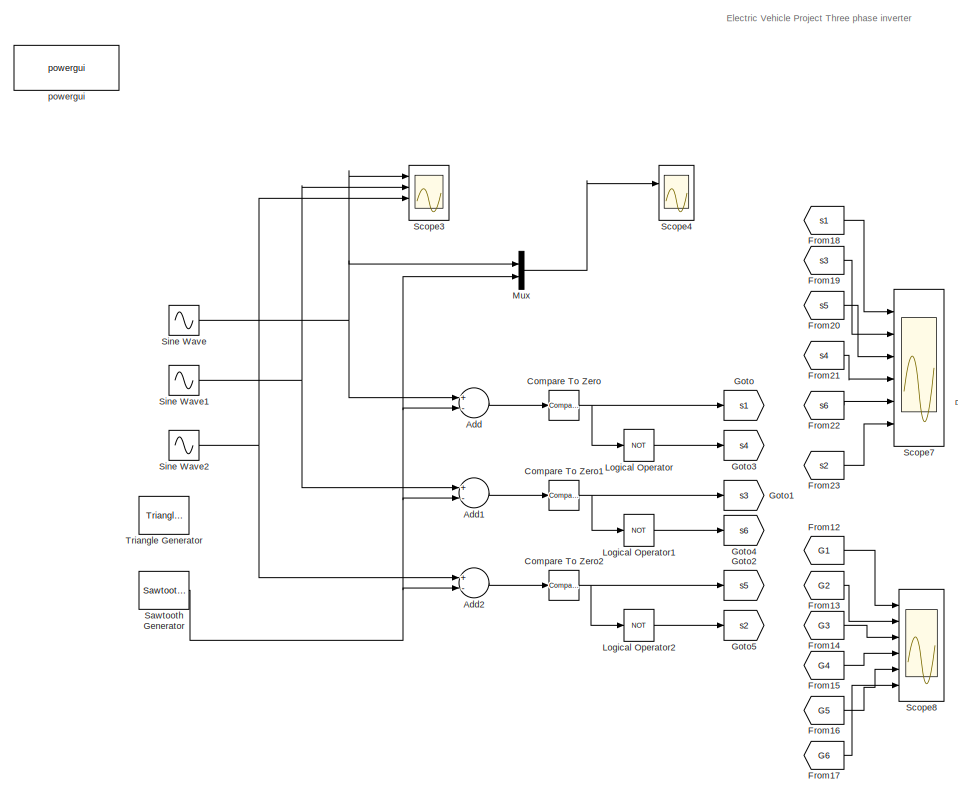
[diagram: root canvas - part 1/2, left side, full height]
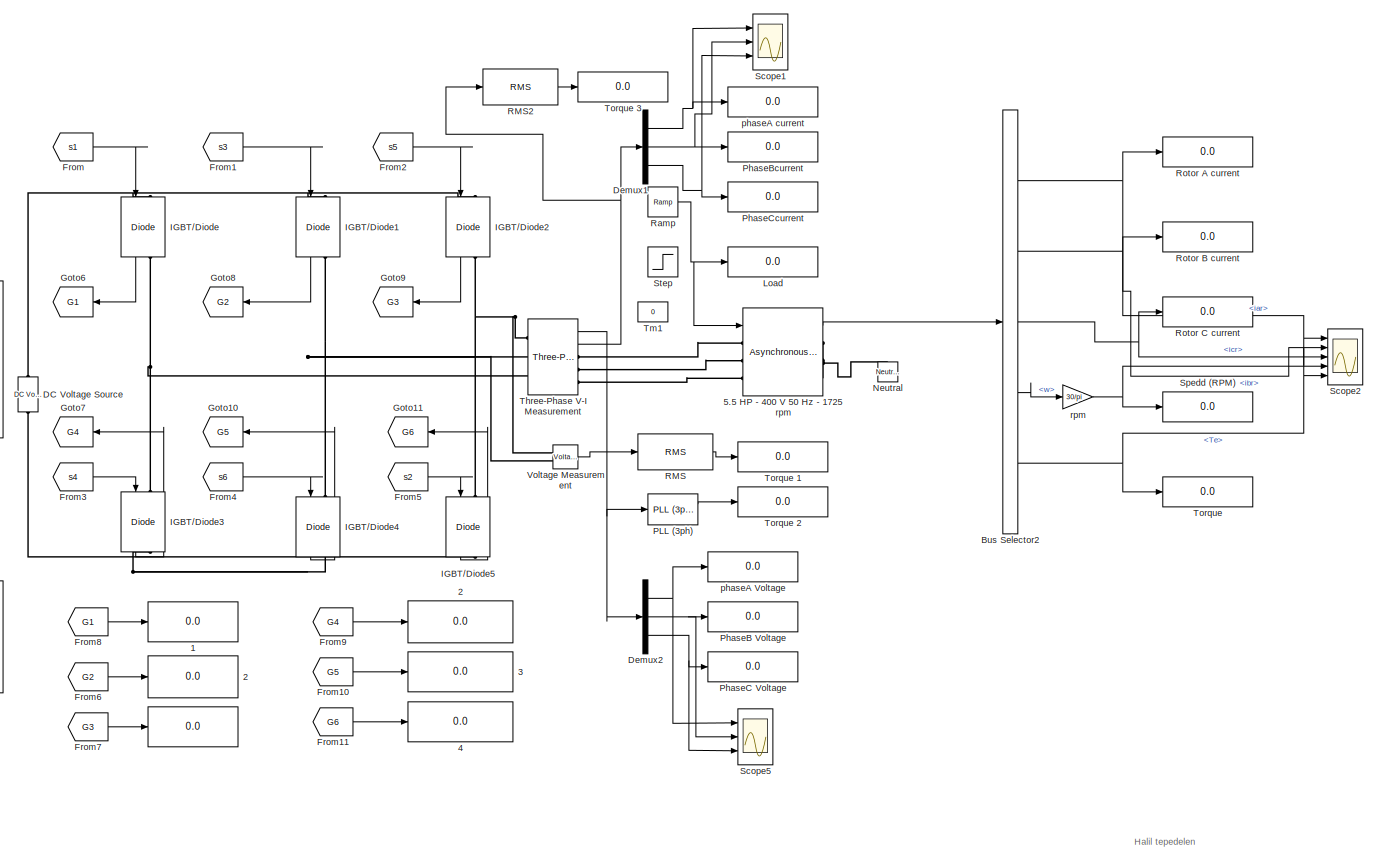
[diagram: root canvas - part 2/2, right side, full height]
MODEL slx_0f6436af5cb3
KIND model
CONFIG AbsTol = auto
CONFIG EnableMultiTasking = off
CONFIG FixedStep = auto
CONFIG MaxStep = 1e-4
CONFIG MinStep = auto
CONFIG RelTol = 1e-3
CONFIG SampleTimeConstraint = Unconstrained
CONFIG Solver = VariableStepAuto
CONFIG SolverName = VariableStepAuto
CONFIG StartTime = 0.0
CONFIG StopTime = 3
BLOCK [Display]  
  Decimation = 1
  Ports = [1]
BLOCK [Display]  1
  Decimation = 1
  Ports = [1]
BLOCK [Display]  2
  Decimation = 1
  Ports = [1]
BLOCK [Display]  3
  Decimation = 1
  Ports = [1]
BLOCK [Display]  4
  Decimation = 1
  Ports = [1]
BLOCK [Display]  Rotor  B current 
  Decimation = 1
  Ports = [1]
BLOCK [Display]  Rotor A current 
  Decimation = 1
  Ports = [1]
BLOCK [Reference] 5.5 HP - 400 V 50 Hz - 1725 rpm  REF=powerlib/Machines/Asynchronous Machine
SI Units
  AttributesFormatString = \n
  Ports = [1, 1, 0, 0, 0, 3, 3]
  SourceBlock = powerlib/Machines/Asynchronous Machine\nSI Units
  SourceProductBaseCode = PS
  SourceProductName = Simscape Power Systems
  SourceType = Asynchronous Machine
BLOCK [Sum] Add
  InputSameDT = off
  Inputs = +-
  OutDataTypeStr = Inherit: Inherit via internal rule
  Ports = [2, 1]
  SaturateOnIntegerOverflow = off
BLOCK [Sum] Add1
  InputSameDT = off
  Inputs = +-
  OutDataTypeStr = Inherit: Inherit via internal rule
  Ports = [2, 1]
  SaturateOnIntegerOverflow = off
BLOCK [Sum] Add2
  InputSameDT = off
  Inputs = +-
  OutDataTypeStr = Inherit: Inherit via internal rule
  Ports = [2, 1]
  SaturateOnIntegerOverflow = off
BLOCK [BusSelector] Bus Selector2
  OutputAsBus = off
  OutputSignals = iar,ibr,icr,w,Te
  Ports = [1, 5]
BLOCK [Reference] Compare To Zero  REF=simulink/Logic and Bit
Operations/Compare
To Zero
  Ports = [1, 1]
  SourceBlock = simulink/Logic and Bit\nOperations/Compare\nTo Zero
  SourceProductBaseCode = SL
  SourceProductName = Simulink
  SourceType = Compare To Zero
BLOCK [Reference] Compare To Zero1  REF=simulink/Logic and Bit
Operations/Compare
To Zero
  Ports = [1, 1]
  SourceBlock = simulink/Logic and Bit\nOperations/Compare\nTo Zero
  SourceProductBaseCode = SL
  SourceProductName = Simulink
  SourceType = Compare To Zero
BLOCK [Reference] Compare To Zero2  REF=simulink/Logic and Bit
Operations/Compare
To Zero
  Ports = [1, 1]
  SourceBlock = simulink/Logic and Bit\nOperations/Compare\nTo Zero
  SourceProductBaseCode = SL
  SourceProductName = Simulink
  SourceType = Compare To Zero
BLOCK [Reference] DC Voltage Source  REF=powerlib/Electrical
Sources/DC Voltage Source
  Ports = [0, 0, 0, 0, 0, 1, 1]
  SourceBlock = powerlib/Electrical\nSources/DC Voltage Source
  SourceProductBaseCode = PS
  SourceProductName = Simscape Power Systems
  SourceType = DC Voltage Source
BLOCK [Demux] Demux1
  DisplayOption = bar
  Outputs = 3
  Ports = [1, 3]
BLOCK [Demux] Demux2
  DisplayOption = bar
  Outputs = 3
  Ports = [1, 3]
BLOCK [From] From
  GotoTag = s1
BLOCK [From] From1
  GotoTag = s3
BLOCK [From] From10
  GotoTag = G5
BLOCK [From] From11
  GotoTag = G6
BLOCK [From] From12
  GotoTag = G1
BLOCK [From] From13
  GotoTag = G2
BLOCK [From] From14
  GotoTag = G3
BLOCK [From] From15
  GotoTag = G4
BLOCK [From] From16
  GotoTag = G5
BLOCK [From] From17
  GotoTag = G6
BLOCK [From] From18
  GotoTag = s1
BLOCK [From] From19
  GotoTag = s3
BLOCK [From] From2
  GotoTag = s5
BLOCK [From] From20
  GotoTag = s5
BLOCK [From] From21
  GotoTag = s4
BLOCK [From] From22
  GotoTag = s6
BLOCK [From] From23
  GotoTag = s2
BLOCK [From] From3
  GotoTag = s4
BLOCK [From] From4
  GotoTag = s6
BLOCK [From] From5
  GotoTag = s2
BLOCK [From] From6
  GotoTag = G2
BLOCK [From] From7
  GotoTag = G3
BLOCK [From] From8
  GotoTag = G1
BLOCK [From] From9
  GotoTag = G4
BLOCK [Goto] Goto
  GotoTag = s1
BLOCK [Goto] Goto1
  GotoTag = s3
BLOCK [Goto] Goto10
  GotoTag = G5
BLOCK [Goto] Goto11
  GotoTag = G6
BLOCK [Goto] Goto2
  GotoTag = s5
BLOCK [Goto] Goto3
  GotoTag = s4
BLOCK [Goto] Goto4
  GotoTag = s6
BLOCK [Goto] Goto5
  GotoTag = s2
BLOCK [Goto] Goto6
  GotoTag = G1
BLOCK [Goto] Goto7
  GotoTag = G4
BLOCK [Goto] Goto8
  GotoTag = G2
BLOCK [Goto] Goto9
  GotoTag = G3
BLOCK [Reference] IGBT//Diode  REF=powerlib/Power
Electronics/IGBT//Diode
  Ports = [1, 1, 0, 0, 0, 1, 1]
  SourceBlock = powerlib/Power\nElectronics/IGBT//Diode
  SourceProductBaseCode = PS
  SourceProductName = Simscape Power Systems
  SourceType = IGBT/Diode
BLOCK [Reference] IGBT//Diode1  REF=powerlib/Power
Electronics/IGBT//Diode
  Ports = [1, 1, 0, 0, 0, 1, 1]
  SourceBlock = powerlib/Power\nElectronics/IGBT//Diode
  SourceProductBaseCode = PS
  SourceProductName = Simscape Power Systems
  SourceType = IGBT/Diode
BLOCK [Reference] IGBT//Diode2  REF=powerlib/Power
Electronics/IGBT//Diode
  Ports = [1, 1, 0, 0, 0, 1, 1]
  SourceBlock = powerlib/Power\nElectronics/IGBT//Diode
  SourceProductBaseCode = PS
  SourceProductName = Simscape Power Systems
  SourceType = IGBT/Diode
BLOCK [Reference] IGBT//Diode3  REF=powerlib/Power
Electronics/IGBT//Diode
  Ports = [1, 1, 0, 0, 0, 1, 1]
  SourceBlock = powerlib/Power\nElectronics/IGBT//Diode
  SourceProductBaseCode = PS
  SourceProductName = Simscape Power Systems
  SourceType = IGBT/Diode
BLOCK [Reference] IGBT//Diode4  REF=powerlib/Power
Electronics/IGBT//Diode
  Ports = [1, 1, 0, 0, 0, 1, 1]
  SourceBlock = powerlib/Power\nElectronics/IGBT//Diode
  SourceProductBaseCode = PS
  SourceProductName = Simscape Power Systems
  SourceType = IGBT/Diode
BLOCK [Reference] IGBT//Diode5  REF=powerlib/Power
Electronics/IGBT//Diode
  Ports = [1, 1, 0, 0, 0, 1, 1]
  SourceBlock = powerlib/Power\nElectronics/IGBT//Diode
  SourceProductBaseCode = PS
  SourceProductName = Simscape Power Systems
  SourceType = IGBT/Diode
BLOCK [Display] Load
  Decimation = 1
  Ports = [1]
BLOCK [Logic] Logical Operator
  AllPortsSameDT = off
  Operator = NOT
  OutDataTypeStr = boolean
  Ports = [1, 1]
BLOCK [Logic] Logical Operator1
  AllPortsSameDT = off
  Operator = NOT
  OutDataTypeStr = boolean
  Ports = [1, 1]
BLOCK [Logic] Logical Operator2
  AllPortsSameDT = off
  Operator = NOT
  OutDataTypeStr = boolean
  Ports = [1, 1]
BLOCK [Mux] Mux
  DisplayOption = bar
  Inputs = 2
  Ports = [2, 1]
BLOCK [Reference] Neutral  REF=powerlib/Elements/Neutral
  AttributesFormatString = node %<NodeNumber>
  Ports = [0, 0, 0, 0, 0, 1]
  SourceBlock = powerlib/Elements/Neutral
  SourceProductBaseCode = PS
  SourceProductName = Simscape Power Systems
  SourceType = Neutral
BLOCK [Reference] PLL (3ph)  REF=powerlib_meascontrol/PLL/PLL
(3ph)
  Ports = [1, 2]
  SourceBlock = powerlib_meascontrol/PLL/PLL\n(3ph)
  SourceProductBaseCode = PS
  SourceProductName = Simscape Power Systems
  SourceType = PLL (3ph)
BLOCK [Display] PhaseB Voltage
  Decimation = 1
  Ports = [1]
BLOCK [Display] PhaseBcurrent
  Decimation = 1
  Ports = [1]
BLOCK [Display] PhaseC Voltage
  Decimation = 1
  Ports = [1]
BLOCK [Display] PhaseCcurrent
  Decimation = 1
  Ports = [1]
BLOCK [Reference] RMS  REF=dspstat3/RMS
  Ports = [1, 1]
  SourceBlock = dspstat3/RMS
  SourceProductBaseCode = DS
  SourceProductName = DSP System Toolbox
  SourceType = RMS
  UserDataPersistent = on
BLOCK [Reference] RMS2  REF=dspstat3/RMS
  Ports = [1, 1]
  SourceBlock = dspstat3/RMS
  SourceProductBaseCode = DS
  SourceProductName = DSP System Toolbox
  SourceType = RMS
  UserDataPersistent = on
BLOCK [Reference] Ramp  REF=simulink/Sources/Ramp
  Ports = [0, 1]
  SourceBlock = simulink/Sources/Ramp
  SourceProductBaseCode = SL
  SourceProductName = Simulink
  SourceType = Ramp
BLOCK [Display] Rotor C current 
  Decimation = 1
  Ports = [1]
BLOCK [Reference] Sawtooth Generator  REF=powerlib_meascontrol/Pulse & Signal
Generators/Sawtooth
Generator
  Ports = [0, 1]
  SourceBlock = powerlib_meascontrol/Pulse & Signal\nGenerators/Sawtooth\nGenerator
  SourceProductBaseCode = PS
  SourceProductName = Simscape Power Systems
  SourceType = Sawtooth Generator
BLOCK [Scope] Scope1
  NumInputPorts = 3
  Ports = [3]
  ScopeSpecificationString = Simulink.scopes.TimeScopeBlockCfg('CurrentConfiguration', extmgr.ConfigurationSet(extmgr.Configuration('Core','General UI',true),extmgr.Configuration('Core','Source UI',true),extmgr.Configuration('Sources','WiredSimulink',true,'DataLoggingVariableName','ScopeData1'),extmgr.Configuration('Visuals','Time Domain',true,'SerializedDisplays',{struct('MinYLimReal','-48.23744','MaxYLimReal','34.97955','YL...<+1516ch>
BLOCK [Scope] Scope2
  NumInputPorts = 5
  Ports = [5]
  ScopeSpecificationString = Simulink.scopes.TimeScopeBlockCfg('CurrentConfiguration', extmgr.ConfigurationSet(extmgr.Configuration('Core','General UI',true),extmgr.Configuration('Core','Source UI',true),extmgr.Configuration('Sources','WiredSimulink',true,'DataLoggingVariableName','ScopeData2'),extmgr.Configuration('Visuals','Time Domain',true,'SerializedDisplays',{struct('MinYLimReal','-28.32852','MaxYLimReal','27.90831','YL...<+5182ch>
BLOCK [Scope] Scope3
  NumInputPorts = 4
  Ports = [4]
  ScopeSpecificationString = Simulink.scopes.TimeScopeBlockCfg('CurrentConfiguration', extmgr.ConfigurationSet(extmgr.Configuration('Core','General UI',true),extmgr.Configuration('Core','Source UI',true),extmgr.Configuration('Sources','WiredSimulink',true,'DataLoggingVariableName','ScopeData3'),extmgr.Configuration('Visuals','Time Domain',true,'SerializedDisplays',{struct('MinYLimReal','-1.25','MaxYLimReal','1.15246','YLabelR...<+3424ch>
BLOCK [Scope] Scope4
  NumInputPorts = 2
  Ports = [2]
  ScopeSpecificationString = Simulink.scopes.TimeScopeBlockCfg('CurrentConfiguration', extmgr.ConfigurationSet(extmgr.Configuration('Core','General UI',true),extmgr.Configuration('Core','Source UI',true),extmgr.Configuration('Sources','WiredSimulink',true,'DataLoggingVariableName','ScopeData4'),extmgr.Configuration('Visuals','Time Domain',true,'SerializedDisplays',{struct('MinYLimReal','-0.625','MaxYLimReal','0.625','YLabelRe...<+2042ch>
BLOCK [Scope] Scope5
  NumInputPorts = 3
  Ports = [3]
  ScopeSpecificationString = Simulink.scopes.TimeScopeBlockCfg('CurrentConfiguration', extmgr.ConfigurationSet(extmgr.Configuration('Core','General UI',true),extmgr.Configuration('Core','Source UI',true),extmgr.Configuration('Sources','WiredSimulink',true,'DataLoggingVariableName','ScopeData3'),extmgr.Configuration('Visuals','Time Domain',true,'SerializedDisplays',{struct('MinYLimReal','-50.15166','MaxYLimReal','450.02322','Y...<+2757ch>
BLOCK [Scope] Scope7
  NumInputPorts = 6
  Ports = [6]
  ScopeSpecificationString = Simulink.scopes.TimeScopeBlockCfg('CurrentConfiguration', extmgr.ConfigurationSet(extmgr.Configuration('Core','General UI',true),extmgr.Configuration('Core','Source UI',true),extmgr.Configuration('Sources','WiredSimulink',true,'DataLoggingVariableName','ScopeData5'),extmgr.Configuration('Visuals','Time Domain',true,'SerializedDisplays',{struct('MinYLimReal','-0.125','MaxYLimReal','1.06848','YLabel...<+4895ch>
BLOCK [Scope] Scope8
  NumInputPorts = 6
  Ports = [6]
  ScopeSpecificationString = Simulink.scopes.TimeScopeBlockCfg('CurrentConfiguration', extmgr.ConfigurationSet(extmgr.Configuration('Core','General UI',true),extmgr.Configuration('Core','Source UI',true),extmgr.Configuration('Sources','WiredSimulink',true,'DataLoggingVariableName','ScopeData6'),extmgr.Configuration('Visuals','Time Domain',true,'SerializedDisplays',{struct('MinYLimReal','-105.7637','MaxYLimReal','422.0884','YL...<+5014ch>
BLOCK [Sin] Sine Wave
  Frequency = 2*pi*50
  Ports = [0, 1]
  SampleTime = 0
BLOCK [Sin] Sine Wave1
  Frequency = 2*pi*50
  Phase = 2*pi/3
  Ports = [0, 1]
  SampleTime = 0
BLOCK [Sin] Sine Wave2
  Frequency = 2*pi*50
  Phase = -2*pi/3
  Ports = [0, 1]
  SampleTime = 0
BLOCK [Display] Spedd (RPM) 
  Decimation = 1
  Ports = [1]
BLOCK [Step] Step
  After = 38
  Before = 3
  SampleTime = 0.1
  Time = 0.13
  VectorParams1D = off
BLOCK [Reference] Three-Phase V-I Measurement  REF=powerlib/Measurements/Three-Phase
V-I Measurement
  Ports = [0, 2, 0, 0, 0, 3, 3]
  SourceBlock = powerlib/Measurements/Three-Phase\nV-I Measurement
  SourceProductBaseCode = PS
  SourceProductName = Simscape Power Systems
  SourceType = Three-Phase VI Measurement
BLOCK [Constant] Tm1
  Value = 0
BLOCK [Display] Torque 
  Decimation = 1
  Ports = [1]
BLOCK [Display] Torque 1
  Decimation = 1
  Ports = [1]
BLOCK [Display] Torque 2
  Decimation = 1
  Ports = [1]
BLOCK [Display] Torque 3
  Decimation = 1
  Ports = [1]
BLOCK [Reference] Triangle Generator  REF=powerlib_meascontrol/Pulse & Signal
Generators/Triangle
Generator
  Ports = [0, 1]
  SourceBlock = powerlib_meascontrol/Pulse & Signal\nGenerators/Triangle\nGenerator
  SourceProductBaseCode = PS
  SourceProductName = Simscape Power Systems
  SourceType = Triangle Generator
BLOCK [Reference] Voltage Measurement  REF=powerlib/Measurements/Voltage Measurement
  Ports = [0, 1, 0, 0, 0, 2]
  SourceBlock = powerlib/Measurements/Voltage Measurement
  SourceProductBaseCode = PS
  SourceProductName = Simscape Power Systems
  SourceType = Voltage Measurement
  UserDataPersistent = on
BLOCK [Display] phaseA Voltage
  Decimation = 1
  Ports = [1]
BLOCK [Display] phaseA current
  Decimation = 1
  Ports = [1]
BLOCK [Reference] powergui  REF=powerlib/powergui
  Ports = []
  Priority = 1
  SourceBlock = powerlib/powergui
  SourceProductBaseCode = PS
  SourceProductName = Simscape Power Systems
  SourceType = PSB option menu block
BLOCK [Gain] rpm
  Gain = 30/pi
ANNOTATION (root): Electric Vehicle Project Three phase inverter
ANNOTATION (root): Halil tepedelen
LINE 5.5 HP - 400 V 50 Hz - 1725 rpm:1 -> Bus Selector2:1
LINE Add1:1 -> Compare To Zero1:1
LINE Add2:1 -> Compare To Zero2:1
LINE Add:1 -> Compare To Zero:1
NET Bus Selector2:1 ->  Rotor A current :1, Scope2:1
NET Bus Selector2:2 ->  Rotor  B current :1, Scope2:2
NET Bus Selector2:3 -> Rotor C current :1, Scope2:3
LINE Bus Selector2:4 -> rpm:1
NET Bus Selector2:5 -> Scope2:5, Torque :1
NET Compare To Zero1:1 -> Goto1:1, Logical Operator1:1
NET Compare To Zero2:1 -> Goto2:1, Logical Operator2:1
NET Compare To Zero:1 -> Goto:1, Logical Operator:1
NET Demux1:1 -> Scope1:1, phaseA current:1
NET Demux1:2 -> PhaseBcurrent:1, Scope1:2
NET Demux1:3 -> PhaseCcurrent:1, Scope1:3
NET Demux2:1 -> Scope5:1, phaseA Voltage:1
NET Demux2:2 -> PhaseB Voltage:1, Scope5:2
NET Demux2:3 -> PhaseC Voltage:1, Scope5:3
LINE From10:1 ->  3:1
LINE From11:1 ->  4:1
LINE From12:1 -> Scope8:1
LINE From13:1 -> Scope8:2
LINE From14:1 -> Scope8:3
LINE From15:1 -> Scope8:4
LINE From16:1 -> Scope8:5
LINE From17:1 -> Scope8:6
LINE From18:1 -> Scope7:1
LINE From19:1 -> Scope7:2
LINE From1:1 -> IGBT//Diode1:1
LINE From20:1 -> Scope7:3
LINE From21:1 -> Scope7:4
LINE From22:1 -> Scope7:5
LINE From23:1 -> Scope7:6
LINE From2:1 -> IGBT//Diode2:1
LINE From3:1 -> IGBT//Diode3:1
LINE From4:1 -> IGBT//Diode4:1
LINE From5:1 -> IGBT//Diode5:1
LINE From6:1 ->  2:1
LINE From7:1 ->  :1
LINE From8:1 ->  1:1
LINE From9:1 ->  2:1
LINE From:1 -> IGBT//Diode:1
LINE IGBT//Diode1:1 -> Goto8:1
LINE IGBT//Diode2:1 -> Goto9:1
LINE IGBT//Diode3:1 -> Goto7:1
LINE IGBT//Diode4:1 -> Goto10:1
LINE IGBT//Diode5:1 -> Goto11:1
LINE IGBT//Diode:1 -> Goto6:1
LINE Logical Operator1:1 -> Goto4:1
LINE Logical Operator2:1 -> Goto5:1
LINE Logical Operator:1 -> Goto3:1
LINE Mux:1 -> Scope4:1
LINE PLL (3ph):1 -> Torque 2:1
LINE RMS2:1 -> Torque 3:1
LINE RMS:1 -> Torque 1:1
NET Ramp:1 -> 5.5 HP - 400 V 50 Hz - 1725 rpm:1, Load:1
NET Sawtooth Generator:1 -> Add1:2, Add2:2, Add:2, Mux:2
NET Sine Wave1:1 -> Add1:1, Scope3:2
NET Sine Wave2:1 -> Add2:1, Scope3:3
NET Sine Wave:1 -> Add:1, Mux:1, Scope3:1
NET Three-Phase V-I Measurement:1 -> Demux2:1, PLL (3ph):1
NET Three-Phase V-I Measurement:2 -> Demux1:1, RMS2:1
LINE Voltage Measurement:1 -> RMS:1
NET rpm:1 -> Scope2:4, Spedd (RPM) :1
PLINE 5.5 HP - 400 V 50 Hz - 1725 rpm:LConn1 -- Three-Phase V-I Measurement:RConn1
PLINE 5.5 HP - 400 V 50 Hz - 1725 rpm:LConn2 -- Three-Phase V-I Measurement:RConn2
PLINE 5.5 HP - 400 V 50 Hz - 1725 rpm:LConn3 -- Three-Phase V-I Measurement:RConn3
PNET net1: 5.5 HP - 400 V 50 Hz - 1725 rpm:RConn1 -- 5.5 HP - 400 V 50 Hz - 1725 rpm:RConn2 -- 5.5 HP - 400 V 50 Hz - 1725 rpm:RConn3 -- Neutral:LConn1
PNET net2: DC Voltage Source:LConn1 -- IGBT//Diode3:RConn1 -- IGBT//Diode4:RConn1 -- IGBT//Diode5:RConn1
PNET net3: DC Voltage Source:RConn1 -- IGBT//Diode1:LConn1 -- IGBT//Diode2:LConn1 -- IGBT//Diode:LConn1
PNET net4: IGBT//Diode1:RConn1 -- IGBT//Diode4:LConn1 -- Three-Phase V-I Measurement:LConn2 -- Voltage Measurement:LConn2
PNET net5: IGBT//Diode2:RConn1 -- IGBT//Diode5:LConn1 -- Three-Phase V-I Measurement:LConn1 -- Voltage Measurement:LConn1
PNET net6: IGBT//Diode3:LConn1 -- IGBT//Diode:RConn1 -- Three-Phase V-I Measurement:LConn3
note: NET lines group one-source signal fan-out (src -> all destinations, sorted); 1:1 wires keep LINE; PNET lines group multi-terminal physical nets as a canonical sorted terminal list (undirected conserving connections); 2-terminal nets keep the pairwise PLINE form
